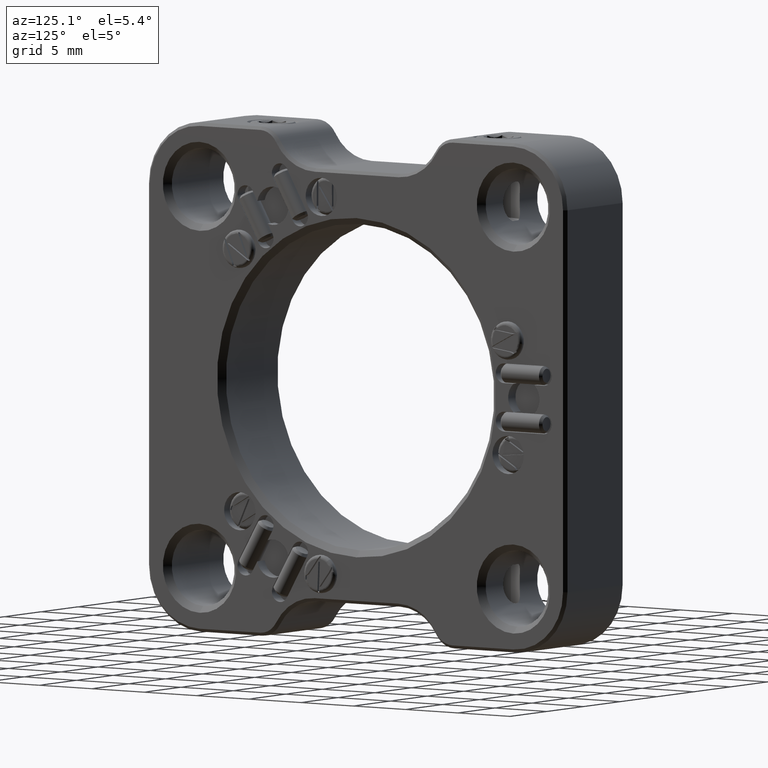
[diagram: clean part render]
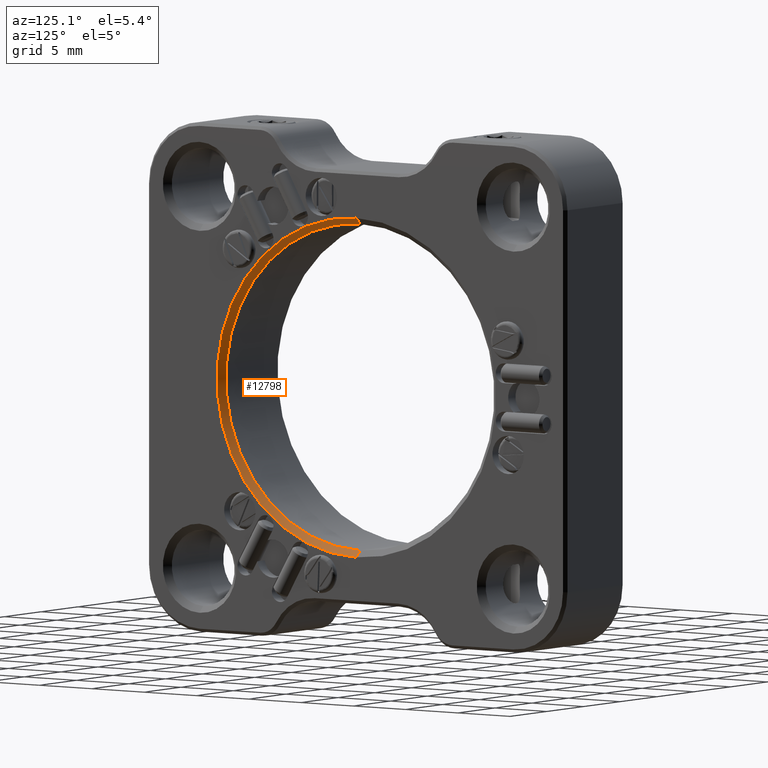
[diagram: same view with one face highlighted and labeled with its STEP entity id]
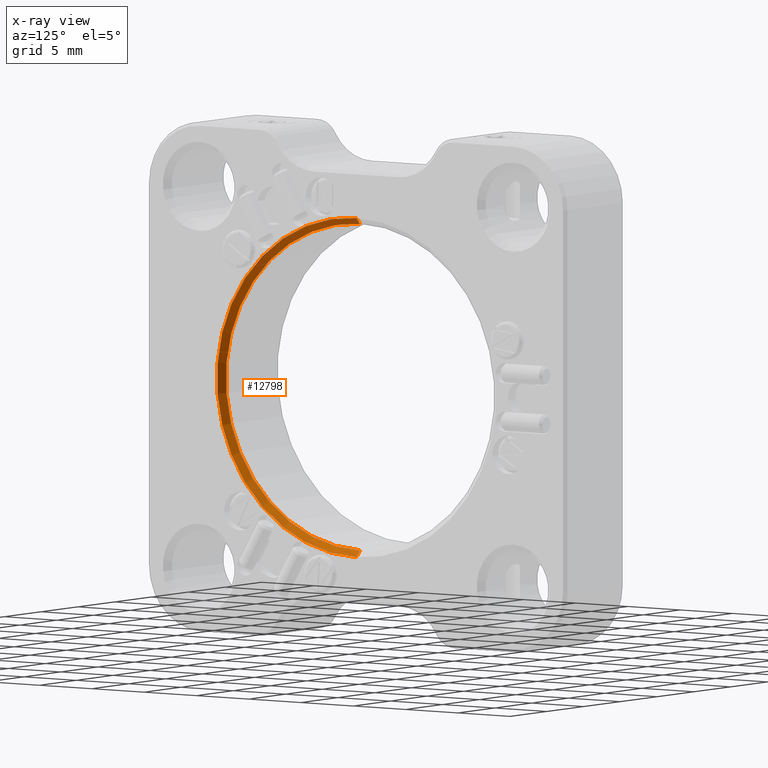
[diagram: x-ray of the same camera — body ghosted, the highlighted face saturated]
A machine part, auxiliary view. The second image highlights one B-rep face of the part: STEP entity #12798.
The next image is the same camera in x-ray: the body ghosted, the highlighted face saturated — about 0% of this face is hidden behind the body in this view.
In plain terms, the highlighted conical surface has half-angle 45 deg.
Its self-contained STEP definition (entity closure, byte-faithful):
#268 = CARTESIAN_POINT ( 'NONE',  ( 3.499999999999989342, 1.570854449266309722E-15, 12.82699999999999818 ) ) ;
#554 = EDGE_CURVE ( 'NONE', #12049, #3314, #15529, .T. ) ;
#1570 = FACE_OUTER_BOUND ( 'NONE', #8329, .T. ) ;
#1780 = CONICAL_SURFACE ( 'NONE', #10161, 12.82699999999999818, 0.7853981633974517207 ) ;
#1793 = DIRECTION ( 'NONE',  ( 0.7071067811865451302, 8.659560562354962440E-17, 0.7071067811865500152 ) ) ;
#2175 = AXIS2_PLACEMENT_3D ( 'NONE', #17799, #17927, #8800 ) ;
#3314 = VERTEX_POINT ( 'NONE', #11349 ) ;
#3968 = LINE ( 'NONE', #10121, #5671 ) ;
#4994 = EDGE_CURVE ( 'NONE', #15848, #13764, #3968, .T. ) ;
#5671 = VECTOR ( 'NONE', #10184, 1000.000000000000114 ) ;
#7238 = DIRECTION ( 'NONE',  ( 0.000000000000000000, 0.000000000000000000, -1.000000000000000000 ) ) ;
#7307 = CARTESIAN_POINT ( 'NONE',  ( 4.000000000000000000, 0.000000000000000000, 0.000000000000000000 ) ) ;
#7632 = DIRECTION ( 'NONE',  ( 0.000000000000000000, 0.000000000000000000, -1.000000000000000000 ) ) ;
#8329 = EDGE_LOOP ( 'NONE', ( #11278, #19056, #9312, #13950 ) ) ;
#8800 = DIRECTION ( 'NONE',  ( 0.000000000000000000, 0.000000000000000000, -1.000000000000000000 ) ) ;
#9287 = DIRECTION ( 'NONE',  ( 1.000000000000000000, 0.000000000000000000, 0.000000000000000000 ) ) ;
#9312 = ORIENTED_EDGE ( 'NONE', *, *, #14276, .F. ) ;
#10121 = CARTESIAN_POINT ( 'NONE',  ( 3.499999999999989342, 0.000000000000000000, -12.82699999999999818 ) ) ;
#10161 = AXIS2_PLACEMENT_3D ( 'NONE', #18096, #9287, #7632 ) ;
#10184 = DIRECTION ( 'NONE',  ( 0.7071067811865451302, 0.000000000000000000, -0.7071067811865500152 ) ) ;
#11005 = CIRCLE ( 'NONE', #14088, 13.32700000000001239 ) ;
#11278 = ORIENTED_EDGE ( 'NONE', *, *, #11593, .F. ) ;
#11349 = CARTESIAN_POINT ( 'NONE',  ( 4.000000000000000000, 1.632086789223679268E-15, 13.32700000000001239 ) ) ;
#11593 = EDGE_CURVE ( 'NONE', #12049, #15848, #17279, .T. ) ;
#12049 = VERTEX_POINT ( 'NONE', #13178 ) ;
#12512 = VECTOR ( 'NONE', #1793, 1000.000000000000114 ) ;
#12798 = ADVANCED_FACE ( 'NONE', ( #1570 ), #1780, .F. ) ;
#13178 = CARTESIAN_POINT ( 'NONE',  ( 3.499999999999989342, 1.601470619244994495E-15, 12.82699999999999818 ) ) ;
#13583 = CARTESIAN_POINT ( 'NONE',  ( 3.499999999999989342, 0.000000000000000000, -12.82699999999999818 ) ) ;
#13764 = VERTEX_POINT ( 'NONE', #14672 ) ;
#13950 = ORIENTED_EDGE ( 'NONE', *, *, #4994, .F. ) ;
#14088 = AXIS2_PLACEMENT_3D ( 'NONE', #7307, #16584, #7238 ) ;
#14276 = EDGE_CURVE ( 'NONE', #13764, #3314, #11005, .T. ) ;
#14672 = CARTESIAN_POINT ( 'NONE',  ( 4.000000000000000000, 0.000000000000000000, -13.32700000000001239 ) ) ;
#15529 = LINE ( 'NONE', #268, #12512 ) ;
#15848 = VERTEX_POINT ( 'NONE', #13583 ) ;
#16584 = DIRECTION ( 'NONE',  ( -1.000000000000000000, -0.000000000000000000, -0.000000000000000000 ) ) ;
#17279 = CIRCLE ( 'NONE', #2175, 12.82699999999999818 ) ;
#17799 = CARTESIAN_POINT ( 'NONE',  ( 3.499999999999989342, 0.000000000000000000, 0.000000000000000000 ) ) ;
#17927 = DIRECTION ( 'NONE',  ( 1.000000000000000000, 0.000000000000000000, 0.000000000000000000 ) ) ;
#18096 = CARTESIAN_POINT ( 'NONE',  ( 3.499999999999989342, 0.000000000000000000, 0.000000000000000000 ) ) ;
#19056 = ORIENTED_EDGE ( 'NONE', *, *, #554, .T. ) ;